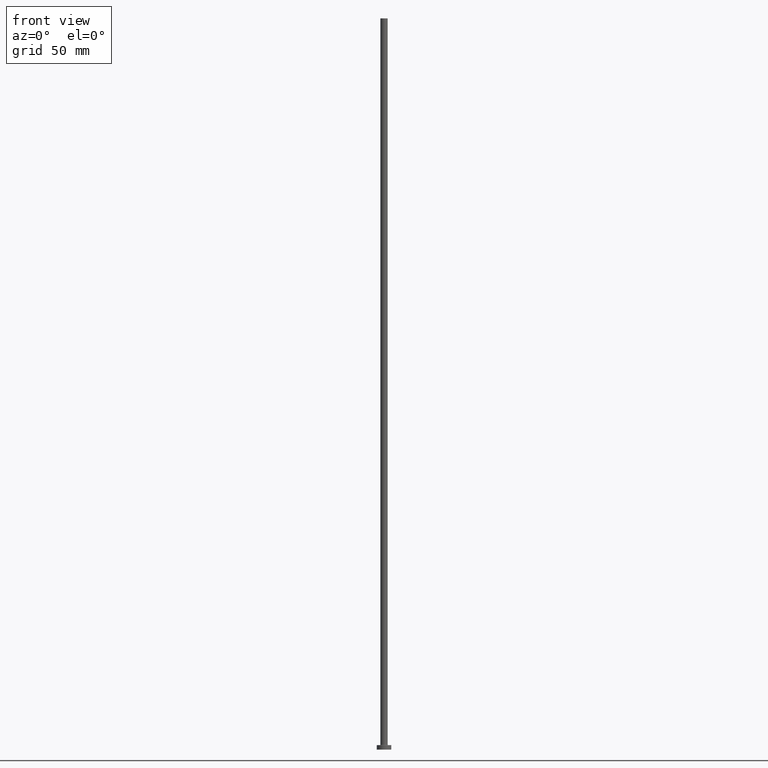
[diagram: clean part render]
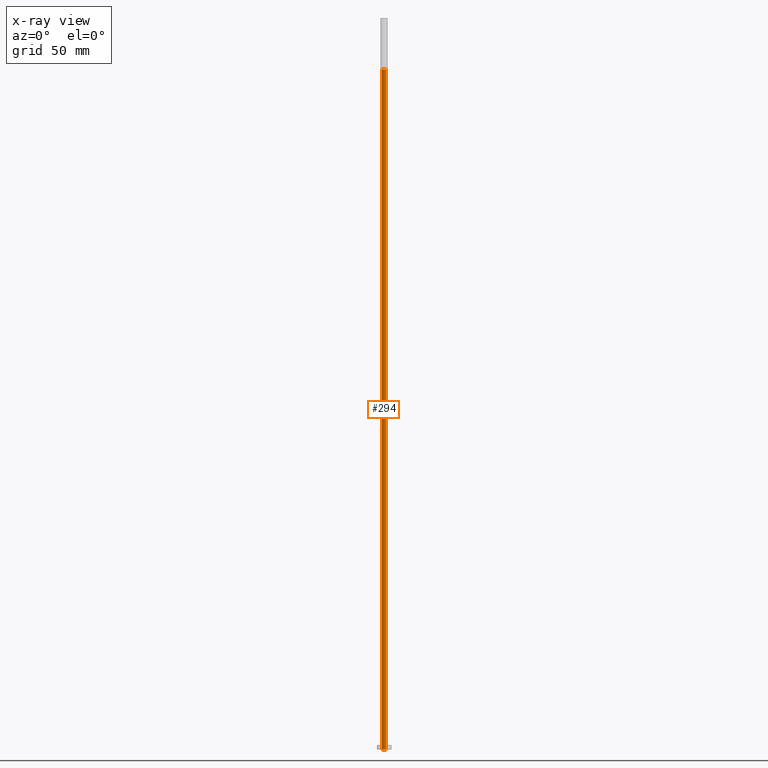
[diagram: x-ray — body ghosted, one internal face saturated and labeled with its STEP entity id]
A machine part, front view, then the same camera in x-ray: the body is ghosted and one INTERNAL B-rep face — a face not visible from any outside direction — is saturated and labeled: STEP entity #294.
In plain terms, the highlighted cylindrical surface (edge-blend (fillet) strip) has radius 1.4 mm, axis along (0, 0, -1).
Its self-contained STEP definition (entity closure, byte-faithful):
#4 = DIRECTION ( 'NONE',  ( 1.000000000000000000, 0.000000000000000000, 0.000000000000000000 ) ) ;
#6 = CIRCLE ( 'NONE', #34, 1.399999999999999911 ) ;
#10 = EDGE_CURVE ( 'NONE', #125, #184, #11, .T. ) ;
#11 = LINE ( 'NONE', #166, #288 ) ;
#34 = AXIS2_PLACEMENT_3D ( 'NONE', #335, #297, #4 ) ;
#43 = AXIS2_PLACEMENT_3D ( 'NONE', #349, #180, #221 ) ;
#69 = CARTESIAN_POINT ( 'NONE',  ( 1.399999999999999911, 1.714505518806294145E-16, 468.9597979746445731 ) ) ;
#76 = EDGE_LOOP ( 'NONE', ( #336, #315, #350, #302 ) ) ;
#90 = VERTEX_POINT ( 'NONE', #201 ) ;
#100 = CARTESIAN_POINT ( 'NONE',  ( -1.399999999999999911, 0.000000000000000000, 0.000000000000000000 ) ) ;
#120 = CARTESIAN_POINT ( 'NONE',  ( 0.000000000000000000, 0.000000000000000000, 0.000000000000000000 ) ) ;
#125 = VERTEX_POINT ( 'NONE', #312 ) ;
#127 = VERTEX_POINT ( 'NONE', #303 ) ;
#156 = DIRECTION ( 'NONE',  ( 0.000000000000000000, 0.000000000000000000, -1.000000000000000000 ) ) ;
#166 = CARTESIAN_POINT ( 'NONE',  ( -1.399999999999999911, 0.000000000000000000, 468.9597979746445731 ) ) ;
#170 = CIRCLE ( 'NONE', #202, 1.399999999999999911 ) ;
#180 = DIRECTION ( 'NONE',  ( 0.000000000000000000, 0.000000000000000000, -1.000000000000000000 ) ) ;
#184 = VERTEX_POINT ( 'NONE', #100 ) ;
#186 = CYLINDRICAL_SURFACE ( 'NONE', #43, 1.399999999999999911 ) ;
#201 = CARTESIAN_POINT ( 'NONE',  ( 1.399999999999999911, 1.714505518806294145E-16, 0.000000000000000000 ) ) ;
#202 = AXIS2_PLACEMENT_3D ( 'NONE', #120, #432, #203 ) ;
#203 = DIRECTION ( 'NONE',  ( 1.000000000000000000, 0.000000000000000000, 0.000000000000000000 ) ) ;
#219 = DIRECTION ( 'NONE',  ( 0.000000000000000000, 0.000000000000000000, -1.000000000000000000 ) ) ;
#221 = DIRECTION ( 'NONE',  ( -1.000000000000000000, 0.000000000000000000, 0.000000000000000000 ) ) ;
#288 = VECTOR ( 'NONE', #156, 1000.000000000000000 ) ;
#294 = ADVANCED_FACE ( 'NONE', ( #385 ), #186, .F. ) ;
#297 = DIRECTION ( 'NONE',  ( 0.000000000000000000, 0.000000000000000000, 1.000000000000000000 ) ) ;
#302 = ORIENTED_EDGE ( 'NONE', *, *, #10, .F. ) ;
#303 = CARTESIAN_POINT ( 'NONE',  ( 1.399999999999999911, 1.714505518806294145E-16, 464.9999999999999432 ) ) ;
#312 = CARTESIAN_POINT ( 'NONE',  ( -1.399999999999999911, 0.000000000000000000, 464.9999999999999432 ) ) ;
#315 = ORIENTED_EDGE ( 'NONE', *, *, #390, .T. ) ;
#335 = CARTESIAN_POINT ( 'NONE',  ( 0.000000000000000000, 0.000000000000000000, 464.9999999999999432 ) ) ;
#336 = ORIENTED_EDGE ( 'NONE', *, *, #424, .T. ) ;
#349 = CARTESIAN_POINT ( 'NONE',  ( 0.000000000000000000, 0.000000000000000000, 468.9597979746445731 ) ) ;
#350 = ORIENTED_EDGE ( 'NONE', *, *, #409, .T. ) ;
#375 = VECTOR ( 'NONE', #219, 1000.000000000000000 ) ;
#384 = LINE ( 'NONE', #69, #375 ) ;
#385 = FACE_OUTER_BOUND ( 'NONE', #76, .T. ) ;
#390 = EDGE_CURVE ( 'NONE', #127, #90, #384, .T. ) ;
#409 = EDGE_CURVE ( 'NONE', #90, #184, #170, .T. ) ;
#424 = EDGE_CURVE ( 'NONE', #125, #127, #6, .T. ) ;
#432 = DIRECTION ( 'NONE',  ( -0.000000000000000000, -0.000000000000000000, -1.000000000000000000 ) ) ;